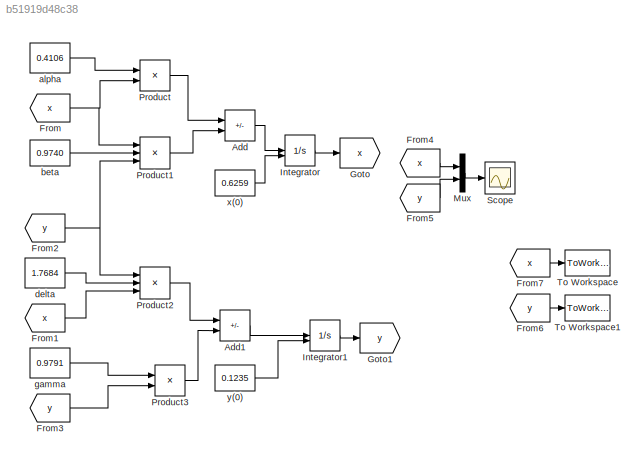
MODEL slx_b51919d48c38
KIND model
CONFIG AbsTol = auto
CONFIG EnableMultiTasking = off
CONFIG FixedStep = auto
CONFIG MaxStep = auto
CONFIG MinStep = auto
CONFIG RelTol = 1e-3
CONFIG SampleTimeConstraint = Unconstrained
CONFIG SolverName = ode15s
CONFIG StartTime = 0.0
CONFIG StopTime = 10.0
BLOCK [Sum] Add
  IconShape = rectangular
  Inputs = +-
BLOCK [Sum] Add1
  IconShape = rectangular
  Inputs = +-
BLOCK [From] From
  GotoTag = x
BLOCK [From] From1
  GotoTag = x
BLOCK [From] From2
  GotoTag = y
BLOCK [From] From3
  GotoTag = y
BLOCK [From] From4
  GotoTag = x
BLOCK [From] From5
  GotoTag = y
BLOCK [From] From6
  GotoTag = y
BLOCK [From] From7
  GotoTag = x
BLOCK [Goto] Goto
  GotoTag = x
BLOCK [Goto] Goto1
  GotoTag = y
BLOCK [Integrator] Integrator
  InitialConditionSource = external
BLOCK [Integrator] Integrator1
  InitialConditionSource = external
BLOCK [Mux] Mux
  DisplayOption = bar
  Inputs = 2
BLOCK [Product] Product
BLOCK [Product] Product1
  Inputs = 3
BLOCK [Product] Product2
  Inputs = 3
BLOCK [Product] Product3
BLOCK [Scope] Scope
  Floating = off
  NumInputPorts = 1
  ScopeSpecificationString = Simulink.scopes.TimeScopeBlockCfg('CurrentConfiguration', extmgr.ConfigurationSet(extmgr.Configuration('Core','General UI',true),extmgr.Configuration('Core','Source UI',true),extmgr.Configuration('Sources','WiredSimulink',true),extmgr.Configuration('Visuals','Time Domain',true),extmgr.Configuration('Tools','Plot Navigation',true),extmgr.Configuration('Tools','Measurements',true)),'Version','2023a'...<+1ch>
BLOCK [ToWorkspace] To Workspace
  FixptAsFi = on
  MaxDataPoints = inf
  SampleTime = -1
  VariableName = x
BLOCK [ToWorkspace] To Workspace1
  FixptAsFi = on
  MaxDataPoints = inf
  SampleTime = -1
  VariableName = y
BLOCK [Constant] alpha
  Value = 0.4106
BLOCK [Constant] beta
  Value = 0.9740
BLOCK [Constant] delta
  Value = 1.7684
BLOCK [Constant] gamma
  Value = 0.9791
BLOCK [Constant] x(0)
  Value = 0.6259
BLOCK [Constant] y(0)
  Value = 0.1235
LINE Add1:1 -> Integrator1:1
LINE Add:1 -> Integrator:1
LINE From1:1 -> Product2:3
NET From2:1 -> Product1:3, Product2:1
LINE From3:1 -> Product3:2
LINE From4:1 -> Mux:1
LINE From5:1 -> Mux:2
LINE From6:1 -> To Workspace1:1
LINE From7:1 -> To Workspace:1
NET From:1 -> Product1:1, Product:2
LINE Integrator1:1 -> Goto1:1
LINE Integrator:1 -> Goto:1
LINE Mux:1 -> Scope:1
LINE Product1:1 -> Add:2
LINE Product2:1 -> Add1:1
LINE Product3:1 -> Add1:2
LINE Product:1 -> Add:1
LINE alpha:1 -> Product:1
LINE beta:1 -> Product1:2
LINE delta:1 -> Product2:2
LINE gamma:1 -> Product3:1
LINE x(0):1 -> Integrator:2
LINE y(0):1 -> Integrator1:2
note: NET lines group one-source signal fan-out (src -> all destinations, sorted); 1:1 wires keep LINE
